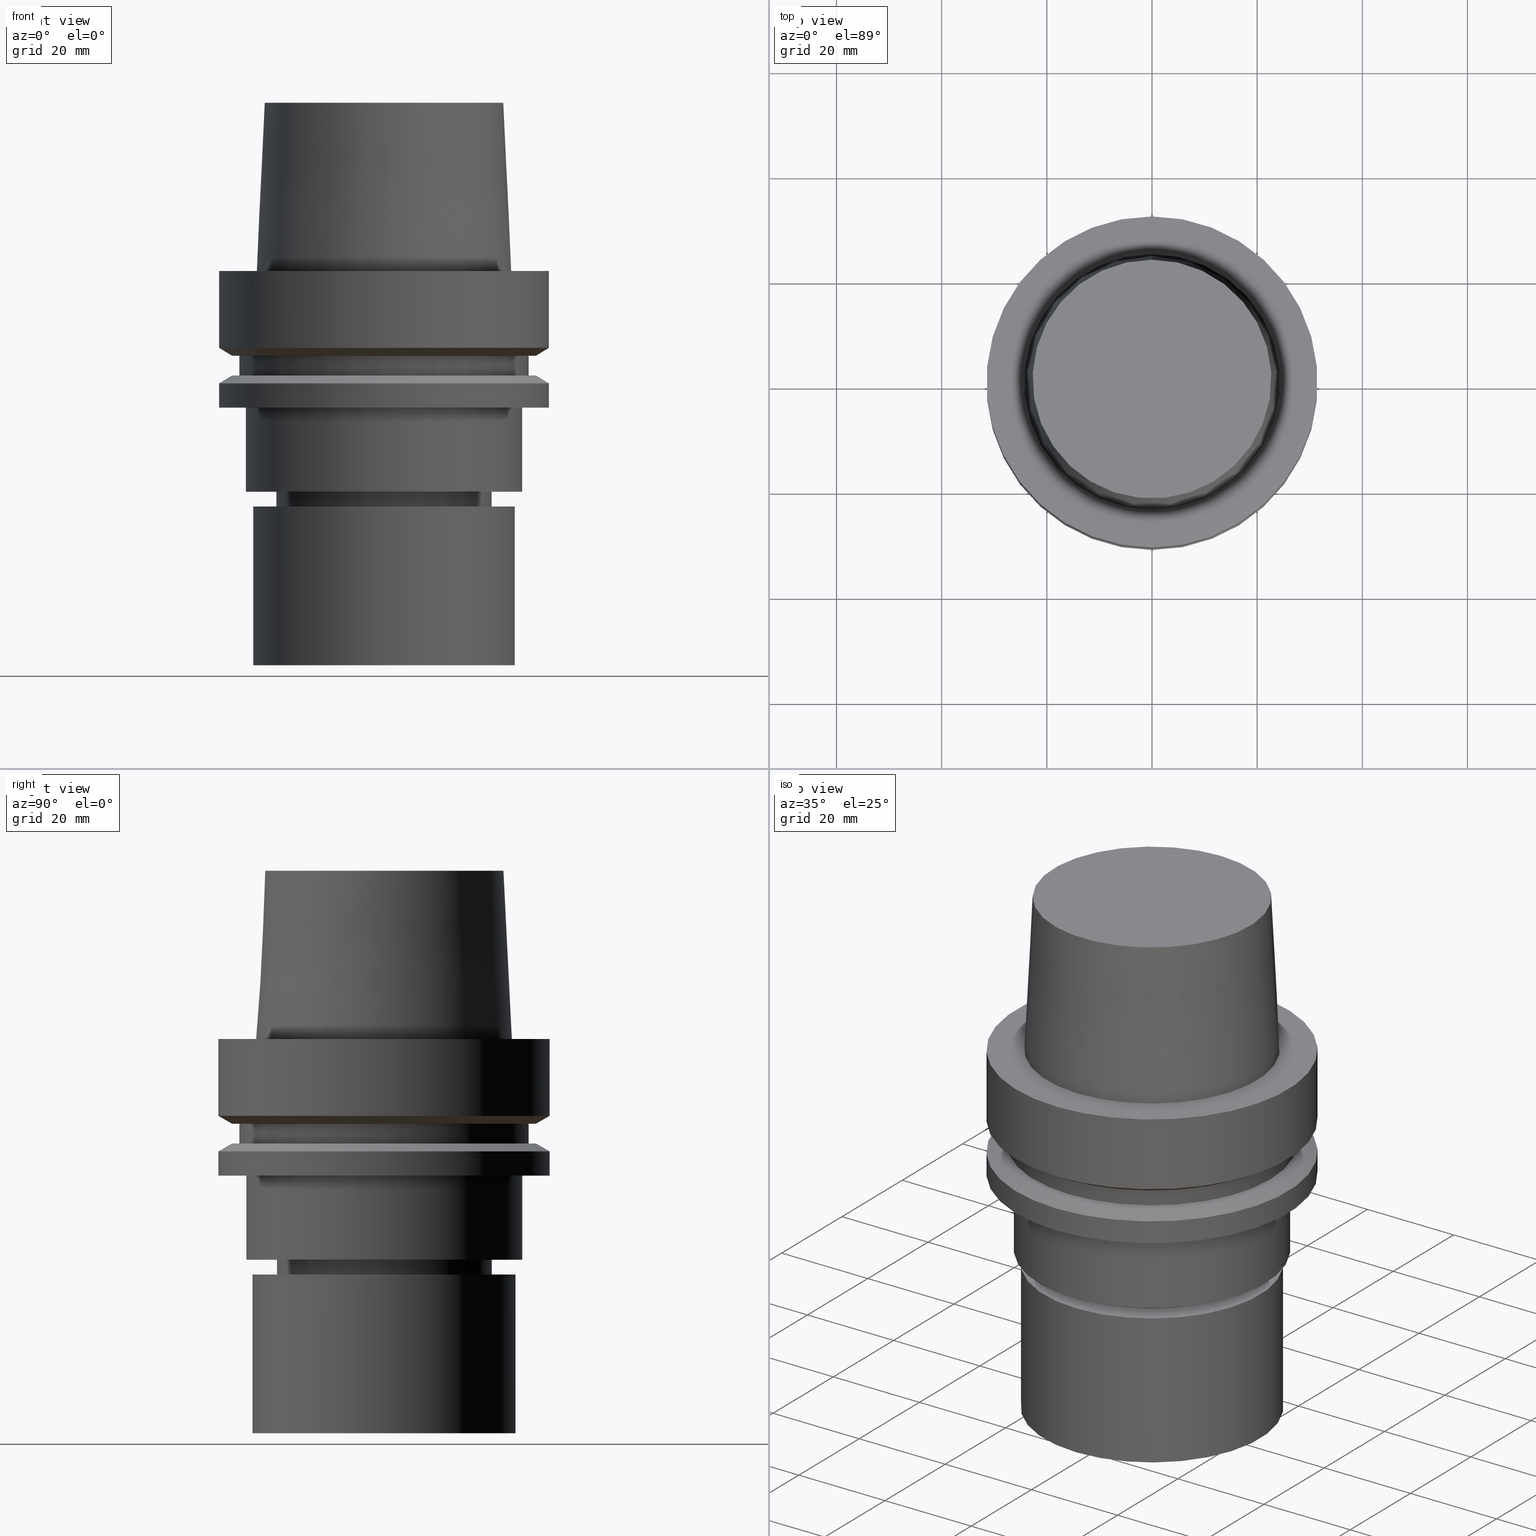
[diagram: canonical four-view strip — front | top / right | iso, engineering-drawing reading convention]
A machine part, canonical four-view strip (front | top / right | iso — engineering-drawing reading convention). The complete STEP part file that produces these views, byte-faithful:
ISO-10303-21;
HEADER;
FILE_DESCRIPTION((''),'1');
FILE_NAME('U:/Translate/02_3D_Field-HP\X2\FF71FF6FFF8CFF9F5916\X0\2013/02_Step_Field-HP\X2\FF71FF6FFF8CFF9F5916\X0\2013/HSK-A63-MEGAER32-75NL.stp','2016-06-22T00:31:55',(''),(''),'Spatial Interop R21 SP3','Kubotek KeyCreator 2011 V10.0.2 (22737)',' ');
FILE_SCHEMA(('automotive_design'));
ENDSEC;
DATA;
#1=MECHANICAL_DESIGN_GEOMETRIC_PRESENTATION_REPRESENTATION(' ',(#14,#15,#16,#17,#18,#19,#20,#21,#22,#23,#24,#25,#26,#27,#28,#29,#30,#31,#32,#33,#34,#35,#36,#37,#38,#39,#40,#41,#42,#43,#44,#45,#46,#47,#48,#49,#50,#51,#52,#53,#54,#55),#10);
#2=PRODUCT_DEFINITION_CONTEXT('',#56,'design');
#3=APPLICATION_PROTOCOL_DEFINITION('INTERNATIONAL STANDARD','automotive_design',1994,#56);
#4=PRODUCT_CATEGORY_RELATIONSHIP('NONE','NONE',#57,#58);
#5=SHAPE_DEFINITION_REPRESENTATION(#59,#60);
#6=PRODUCT_DEFINITION_CONTEXT('',#61,'design');
#7=APPLICATION_PROTOCOL_DEFINITION('INTERNATIONAL STANDARD','automotive_design',1994,#61);
#8=PRODUCT_CATEGORY_RELATIONSHIP('NONE','NONE',#62,#63);
#9=SHAPE_DEFINITION_REPRESENTATION(#64,#65);
#10= (GEOMETRIC_REPRESENTATION_CONTEXT(3)GLOBAL_UNCERTAINTY_ASSIGNED_CONTEXT((#68))GLOBAL_UNIT_ASSIGNED_CONTEXT((#70,#71,#72))REPRESENTATION_CONTEXT('NONE','WORKSPACE'));
#14=STYLED_ITEM('',(#74,#75),#76);
#15=STYLED_ITEM('',(#77,#78),#79);
#16=STYLED_ITEM('',(#80),#81);
#17=STYLED_ITEM('',(#82,#83),#84);
#18=STYLED_ITEM('',(#85,#86),#87);
#19=STYLED_ITEM('',(#88),#89);
#20=STYLED_ITEM('',(#90,#91),#92);
#21=STYLED_ITEM('',(#93,#94),#95);
#22=STYLED_ITEM('',(#96,#97),#98);
#23=STYLED_ITEM('',(#99,#100),#101);
#24=STYLED_ITEM('',(#102,#103),#104);
#25=STYLED_ITEM('',(#105),#106);
#26=STYLED_ITEM('',(#107),#108);
#27=STYLED_ITEM('',(#109,#110),#111);
#28=STYLED_ITEM('',(#112,#113),#114);
#29=STYLED_ITEM('',(#115,#116),#117);
#30=STYLED_ITEM('',(#118),#119);
#31=STYLED_ITEM('',(#120),#121);
#32=STYLED_ITEM('',(#122),#123);
#33=STYLED_ITEM('',(#124,#125),#126);
#34=STYLED_ITEM('',(#127),#128);
#35=STYLED_ITEM('',(#129),#130);
#36=STYLED_ITEM('',(#131),#132);
#37=STYLED_ITEM('',(#133,#134),#135);
#38=STYLED_ITEM('',(#136),#137);
#39=STYLED_ITEM('',(#138,#139),#140);
#40=STYLED_ITEM('',(#141),#142);
#41=STYLED_ITEM('',(#143),#144);
#42=STYLED_ITEM('',(#145),#146);
#43=STYLED_ITEM('',(#147),#148);
#44=STYLED_ITEM('',(#149),#150);
#45=STYLED_ITEM('',(#151,#152),#153);
#46=STYLED_ITEM('',(#154),#155);
#47=STYLED_ITEM('',(#156,#157),#158);
#48=STYLED_ITEM('',(#159,#160),#161);
#49=STYLED_ITEM('',(#162,#163),#164);
#50=STYLED_ITEM('',(#165),#166);
#51=STYLED_ITEM('',(#167,#168),#169);
#52=STYLED_ITEM('',(#170,#171),#172);
#53=STYLED_ITEM('',(#173,#174),#175);
#54=STYLED_ITEM('',(#176,#177),#178);
#55=STYLED_ITEM('',(#179),#180);
#56=APPLICATION_CONTEXT(' ');
#57=PRODUCT_CATEGORY('part','NONE');
#58=PRODUCT_RELATED_PRODUCT_CATEGORY('detail',' ',(#181));
#59=PRODUCT_DEFINITION_SHAPE('NONE','NONE',#182);
#60=ADVANCED_BREP_SHAPE_REPRESENTATION('Unnamed[1]',(#84,#183),#10);
#61=APPLICATION_CONTEXT(' ');
#62=PRODUCT_CATEGORY('part','NONE');
#63=PRODUCT_RELATED_PRODUCT_CATEGORY('detail',' ',(#184));
#64=PRODUCT_DEFINITION_SHAPE('NONE','NONE',#185);
#65=ADVANCED_BREP_SHAPE_REPRESENTATION('Unnamed[1]',(#140,#186),#10);
#68=UNCERTAINTY_MEASURE_WITH_UNIT(LENGTH_MEASURE(1.0E-006),#70,'','');
#70= (CONVERSION_BASED_UNIT('MILLIMETRE',#189)LENGTH_UNIT()NAMED_UNIT(#192));
#71= (NAMED_UNIT(#194)PLANE_ANGLE_UNIT()SI_UNIT($,.RADIAN.));
#72= (NAMED_UNIT(#194)SOLID_ANGLE_UNIT()SI_UNIT($,.STERADIAN.));
#74=PRESENTATION_STYLE_ASSIGNMENT((#200));
#75=PRESENTATION_STYLE_ASSIGNMENT((#201));
#76=ADVANCED_FACE('Unnamed[1]',(#202,#203),#204,.T.);
#77=PRESENTATION_STYLE_ASSIGNMENT((#205));
#78=PRESENTATION_STYLE_ASSIGNMENT((#206));
#79=ADVANCED_FACE('Unnamed[1]',(#207,#208),#209,.T.);
#80=PRESENTATION_STYLE_ASSIGNMENT((#210));
#81=EDGE_CURVE('Unnamed[1]',#211,#211,#212,.T.);
#82=PRESENTATION_STYLE_ASSIGNMENT((#213));
#83=PRESENTATION_STYLE_ASSIGNMENT((#214));
#84=MANIFOLD_SOLID_BREP('Unnamed[1]',#215);
#85=PRESENTATION_STYLE_ASSIGNMENT((#216));
#86=PRESENTATION_STYLE_ASSIGNMENT((#217));
#87=ADVANCED_FACE('Unnamed[1]',(#218,#219),#220,.T.);
#88=PRESENTATION_STYLE_ASSIGNMENT((#221));
#89=EDGE_CURVE('Unnamed[1]',#222,#222,#223,.T.);
#90=PRESENTATION_STYLE_ASSIGNMENT((#224));
#91=PRESENTATION_STYLE_ASSIGNMENT((#225));
#92=ADVANCED_FACE('Unnamed[1]',(#226,#227),#228,.T.);
#93=PRESENTATION_STYLE_ASSIGNMENT((#229));
#94=PRESENTATION_STYLE_ASSIGNMENT((#230));
#95=ADVANCED_FACE('Unnamed[1]',(#231,#232),#233,.T.);
#96=PRESENTATION_STYLE_ASSIGNMENT((#234));
#97=PRESENTATION_STYLE_ASSIGNMENT((#235));
#98=ADVANCED_FACE('Unnamed[1]',(#236,#237),#238,.T.);
#99=PRESENTATION_STYLE_ASSIGNMENT((#239));
#100=PRESENTATION_STYLE_ASSIGNMENT((#240));
#101=ADVANCED_FACE('Unnamed[1]',(#241),#242,.T.);
#102=PRESENTATION_STYLE_ASSIGNMENT((#243));
#103=PRESENTATION_STYLE_ASSIGNMENT((#244));
#104=ADVANCED_FACE('Unnamed[1]',(#245,#246),#247,.T.);
#105=PRESENTATION_STYLE_ASSIGNMENT((#248));
#106=EDGE_CURVE('Unnamed[1]',#249,#249,#250,.T.);
#107=PRESENTATION_STYLE_ASSIGNMENT((#251));
#108=EDGE_CURVE('Unnamed[1]',#252,#252,#253,.T.);
#109=PRESENTATION_STYLE_ASSIGNMENT((#254));
#110=PRESENTATION_STYLE_ASSIGNMENT((#255));
#111=ADVANCED_FACE('Unnamed[1]',(#256,#257),#258,.T.);
#112=PRESENTATION_STYLE_ASSIGNMENT((#259));
#113=PRESENTATION_STYLE_ASSIGNMENT((#260));
#114=ADVANCED_FACE('Unnamed[1]',(#261),#262,.T.);
#115=PRESENTATION_STYLE_ASSIGNMENT((#263));
#116=PRESENTATION_STYLE_ASSIGNMENT((#264));
#117=ADVANCED_FACE('Unnamed[1]',(#265,#266),#267,.T.);
#118=PRESENTATION_STYLE_ASSIGNMENT((#268));
#119=EDGE_CURVE('Unnamed[1]',#269,#269,#270,.T.);
#120=PRESENTATION_STYLE_ASSIGNMENT((#271));
#121=EDGE_CURVE('Unnamed[1]',#272,#272,#273,.T.);
#122=PRESENTATION_STYLE_ASSIGNMENT((#274));
#123=EDGE_CURVE('Unnamed[1]',#275,#275,#276,.T.);
#124=PRESENTATION_STYLE_ASSIGNMENT((#277));
#125=PRESENTATION_STYLE_ASSIGNMENT((#278));
#126=ADVANCED_FACE('Unnamed[1]',(#279,#280),#281,.T.);
#127=PRESENTATION_STYLE_ASSIGNMENT((#282));
#128=EDGE_CURVE('Unnamed[1]',#283,#283,#284,.T.);
#129=PRESENTATION_STYLE_ASSIGNMENT((#285));
#130=EDGE_CURVE('Unnamed[1]',#286,#286,#287,.T.);
#131=PRESENTATION_STYLE_ASSIGNMENT((#288));
#132=EDGE_CURVE('Unnamed[1]',#289,#289,#290,.T.);
#133=PRESENTATION_STYLE_ASSIGNMENT((#291));
#134=PRESENTATION_STYLE_ASSIGNMENT((#292));
#135=ADVANCED_FACE('Unnamed[1]',(#293,#294),#295,.T.);
#136=PRESENTATION_STYLE_ASSIGNMENT((#296));
#137=EDGE_CURVE('Unnamed[1]',#297,#297,#298,.T.);
#138=PRESENTATION_STYLE_ASSIGNMENT((#299));
#139=PRESENTATION_STYLE_ASSIGNMENT((#300));
#140=MANIFOLD_SOLID_BREP('Unnamed[1]',#301);
#141=PRESENTATION_STYLE_ASSIGNMENT((#302));
#142=EDGE_CURVE('Unnamed[1]',#303,#303,#304,.T.);
#143=PRESENTATION_STYLE_ASSIGNMENT((#305));
#144=EDGE_CURVE('Unnamed[1]',#306,#306,#307,.T.);
#145=PRESENTATION_STYLE_ASSIGNMENT((#308));
#146=EDGE_CURVE('Unnamed[1]',#309,#309,#310,.T.);
#147=PRESENTATION_STYLE_ASSIGNMENT((#311));
#148=EDGE_CURVE('Unnamed[1]',#312,#312,#313,.T.);
#149=PRESENTATION_STYLE_ASSIGNMENT((#314));
#150=EDGE_CURVE('Unnamed[1]',#315,#315,#316,.T.);
#151=PRESENTATION_STYLE_ASSIGNMENT((#317));
#152=PRESENTATION_STYLE_ASSIGNMENT((#318));
#153=ADVANCED_FACE('Unnamed[1]',(#319,#320),#321,.T.);
#154=PRESENTATION_STYLE_ASSIGNMENT((#322));
#155=EDGE_CURVE('Unnamed[1]',#323,#323,#324,.T.);
#156=PRESENTATION_STYLE_ASSIGNMENT((#325));
#157=PRESENTATION_STYLE_ASSIGNMENT((#326));
#158=ADVANCED_FACE('Unnamed[1]',(#327),#328,.T.);
#159=PRESENTATION_STYLE_ASSIGNMENT((#329));
#160=PRESENTATION_STYLE_ASSIGNMENT((#330));
#161=ADVANCED_FACE('Unnamed[1]',(#331,#332),#333,.T.);
#162=PRESENTATION_STYLE_ASSIGNMENT((#334));
#163=PRESENTATION_STYLE_ASSIGNMENT((#335));
#164=ADVANCED_FACE('Unnamed[1]',(#336,#337),#338,.T.);
#165=PRESENTATION_STYLE_ASSIGNMENT((#339));
#166=EDGE_CURVE('Unnamed[1]',#340,#340,#341,.T.);
#167=PRESENTATION_STYLE_ASSIGNMENT((#342));
#168=PRESENTATION_STYLE_ASSIGNMENT((#343));
#169=ADVANCED_FACE('Unnamed[1]',(#344),#345,.T.);
#170=PRESENTATION_STYLE_ASSIGNMENT((#346));
#171=PRESENTATION_STYLE_ASSIGNMENT((#347));
#172=ADVANCED_FACE('Unnamed[1]',(#348,#349),#350,.T.);
#173=PRESENTATION_STYLE_ASSIGNMENT((#351));
#174=PRESENTATION_STYLE_ASSIGNMENT((#352));
#175=ADVANCED_FACE('Unnamed[1]',(#353,#354),#355,.T.);
#176=PRESENTATION_STYLE_ASSIGNMENT((#356));
#177=PRESENTATION_STYLE_ASSIGNMENT((#357));
#178=ADVANCED_FACE('Unnamed[1]',(#358,#359),#360,.T.);
#179=PRESENTATION_STYLE_ASSIGNMENT((#361));
#180=EDGE_CURVE('Unnamed[1]',#362,#362,#363,.T.);
#181=PRODUCT('Unnamed[1]','Unnamed[1]','PART-Unnamed[1]-DESC',(#364));
#182=PRODUCT_DEFINITION('NONE','NONE',#365,#2);
#183=AXIS2_PLACEMENT_3D('',#366,#367,#368);
#184=PRODUCT('Unnamed[1]','Unnamed[1]','PART-Unnamed[1]-DESC',(#369));
#185=PRODUCT_DEFINITION('NONE','NONE',#370,#6);
#186=AXIS2_PLACEMENT_3D('',#371,#372,#373);
#189=LENGTH_MEASURE_WITH_UNIT(LENGTH_MEASURE(1.0),#374);
#192=DIMENSIONAL_EXPONENTS(1.0,0.0,0.0,0.0,0.0,0.0,0.0);
#194=DIMENSIONAL_EXPONENTS(0.0,0.0,0.0,0.0,0.0,0.0,0.0);
#200=SURFACE_STYLE_USAGE(.BOTH.,#375);
#201=CURVE_STYLE('',#376,POSITIVE_LENGTH_MEASURE(1000.0),#377);
#202=FACE_BOUND('',#378,.T.);
#203=FACE_BOUND('',#379,.T.);
#204=CYLINDRICAL_SURFACE('',#380,20.4999999999961);
#205=SURFACE_STYLE_USAGE(.BOTH.,#381);
#206=CURVE_STYLE('',#382,POSITIVE_LENGTH_MEASURE(1000.0),#383);
#207=FACE_BOUND('',#384,.T.);
#208=FACE_BOUND('',#385,.T.);
#209=CYLINDRICAL_SURFACE('',#386,31.5);
#210=CURVE_STYLE('',#387,POSITIVE_LENGTH_MEASURE(1000.0),#388);
#211=VERTEX_POINT('',#389);
#212=CIRCLE('',#390,20.0000000000001);
#213=SURFACE_STYLE_USAGE(.BOTH.,#391);
#214=CURVE_STYLE('',#392,POSITIVE_LENGTH_MEASURE(1000.0),#393);
#215=CLOSED_SHELL('',(#158,#126,#135,#87,#76,#153,#92,#175,#95,#164,#104,#117,#161,#111,#79,#98,#172,#101));
#216=SURFACE_STYLE_USAGE(.BOTH.,#394);
#217=CURVE_STYLE('',#395,POSITIVE_LENGTH_MEASURE(1000.0),#396);
#218=FACE_BOUND('',#397,.T.);
#219=FACE_BOUND('',#398,.T.);
#220=CONICAL_SURFACE('',#399,20.2500000000006,0.766162649696511);
#221=CURVE_STYLE('',#400,POSITIVE_LENGTH_MEASURE(1000.0),#401);
#222=VERTEX_POINT('',#402);
#223=CIRCLE('',#403,27.5);
#224=SURFACE_STYLE_USAGE(.BOTH.,#404);
#225=CURVE_STYLE('',#405,POSITIVE_LENGTH_MEASURE(1000.0),#406);
#226=FACE_BOUND('',#407,.T.);
#227=FACE_BOUND('',#408,.T.);
#228=CYLINDRICAL_SURFACE('',#409,26.3);
#229=SURFACE_STYLE_USAGE(.BOTH.,#410);
#230=CURVE_STYLE('',#411,POSITIVE_LENGTH_MEASURE(1000.0),#412);
#231=FACE_BOUND('',#413,.T.);
#232=FACE_BOUND('',#414,.T.);
#233=CYLINDRICAL_SURFACE('',#415,31.4999999999999);
#234=SURFACE_STYLE_USAGE(.BOTH.,#416);
#235=CURVE_STYLE('',#417,POSITIVE_LENGTH_MEASURE(1000.0),#418);
#236=FACE_BOUND('',#419,.T.);
#237=FACE_OUTER_BOUND('',#420,.T.);
#238=PLANE('',#421);
#239=SURFACE_STYLE_USAGE(.BOTH.,#422);
#240=CURVE_STYLE('',#423,POSITIVE_LENGTH_MEASURE(1000.0),#424);
#241=FACE_OUTER_BOUND('',#425,.T.);
#242=PLANE('',#426);
#243=SURFACE_STYLE_USAGE(.BOTH.,#427);
#244=CURVE_STYLE('',#428,POSITIVE_LENGTH_MEASURE(1000.0),#429);
#245=FACE_BOUND('',#430,.T.);
#246=FACE_OUTER_BOUND('',#431,.T.);
#247=PLANE('',#432);
#248=CURVE_STYLE('',#433,POSITIVE_LENGTH_MEASURE(1000.0),#434);
#249=VERTEX_POINT('',#435);
#250=CIRCLE('',#436,31.5);
#251=CURVE_STYLE('',#437,POSITIVE_LENGTH_MEASURE(1000.0),#438);
#252=VERTEX_POINT('',#439);
#253=CIRCLE('',#440,31.5000000000001);
#254=SURFACE_STYLE_USAGE(.BOTH.,#441);
#255=CURVE_STYLE('',#442,POSITIVE_LENGTH_MEASURE(1000.0),#443);
#256=FACE_BOUND('',#444,.T.);
#257=FACE_BOUND('',#445,.T.);
#258=CONICAL_SURFACE('',#446,30.1987976320959,1.04719755119657);
#259=SURFACE_STYLE_USAGE(.BOTH.,#447);
#260=CURVE_STYLE('',#448,POSITIVE_LENGTH_MEASURE(1000.0),#449);
#261=FACE_OUTER_BOUND('',#450,.T.);
#262=PLANE('',#451);
#263=SURFACE_STYLE_USAGE(.BOTH.,#452);
#264=CURVE_STYLE('',#453,POSITIVE_LENGTH_MEASURE(1000.0),#454);
#265=FACE_BOUND('',#455,.T.);
#266=FACE_BOUND('',#456,.T.);
#267=CYLINDRICAL_SURFACE('',#457,27.4999999999994);
#268=CURVE_STYLE('',#458,POSITIVE_LENGTH_MEASURE(1000.0),#459);
#269=VERTEX_POINT('',#460);
#270=CIRCLE('',#461,20.0);
#271=CURVE_STYLE('',#462,POSITIVE_LENGTH_MEASURE(1000.0),#463);
#272=VERTEX_POINT('',#464);
#273=CIRCLE('',#465,27.4999999999989);
#274=CURVE_STYLE('',#466,POSITIVE_LENGTH_MEASURE(1000.0),#467);
#275=VERTEX_POINT('',#468);
#276=CIRCLE('',#469,25.0);
#277=SURFACE_STYLE_USAGE(.BOTH.,#470);
#278=CURVE_STYLE('',#471,POSITIVE_LENGTH_MEASURE(1000.0),#472);
#279=FACE_BOUND('',#473,.T.);
#280=FACE_BOUND('',#474,.T.);
#281=CONICAL_SURFACE('',#475,19.4499999999999,0.523598775598219);
#282=CURVE_STYLE('',#476,POSITIVE_LENGTH_MEASURE(1000.0),#477);
#283=VERTEX_POINT('',#478);
#284=CIRCLE('',#479,25.0);
#285=CURVE_STYLE('',#480,POSITIVE_LENGTH_MEASURE(1000.0),#481);
#286=VERTEX_POINT('',#482);
#287=CIRCLE('',#483,18.8999999999997);
#288=CURVE_STYLE('',#484,POSITIVE_LENGTH_MEASURE(1000.0),#485);
#289=VERTEX_POINT('',#486);
#290=CIRCLE('',#487,24.315);
#291=SURFACE_STYLE_USAGE(.BOTH.,#488);
#292=CURVE_STYLE('',#489,POSITIVE_LENGTH_MEASURE(1000.0),#490);
#293=FACE_BOUND('',#491,.T.);
#294=FACE_BOUND('',#492,.T.);
#295=CYLINDRICAL_SURFACE('',#493,20.0);
#296=CURVE_STYLE('',#494,POSITIVE_LENGTH_MEASURE(1000.0),#495);
#297=VERTEX_POINT('',#496);
#298=CIRCLE('',#497,26.3);
#299=SURFACE_STYLE_USAGE(.BOTH.,#498);
#300=CURVE_STYLE('',#499,POSITIVE_LENGTH_MEASURE(1000.0),#500);
#301=CLOSED_SHELL('',(#114,#169,#178));
#302=CURVE_STYLE('',#501,POSITIVE_LENGTH_MEASURE(1000.0),#502);
#303=VERTEX_POINT('',#503);
#304=CIRCLE('',#504,28.8975952641919);
#305=CURVE_STYLE('',#505,POSITIVE_LENGTH_MEASURE(1000.0),#506);
#306=VERTEX_POINT('',#507);
#307=CIRCLE('',#508,26.3);
#308=CURVE_STYLE('',#509,POSITIVE_LENGTH_MEASURE(1000.0),#510);
#309=VERTEX_POINT('',#511);
#310=CIRCLE('',#512,20.5000000000012);
#311=CURVE_STYLE('',#513,POSITIVE_LENGTH_MEASURE(1000.0),#514);
#312=VERTEX_POINT('',#515);
#313=CIRCLE('',#516,20.4999999999911);
#314=CURVE_STYLE('',#517,POSITIVE_LENGTH_MEASURE(1000.0),#518);
#315=VERTEX_POINT('',#519);
#316=CIRCLE('',#520,28.8975952641919);
#317=SURFACE_STYLE_USAGE(.BOTH.,#521);
#318=CURVE_STYLE('',#522,POSITIVE_LENGTH_MEASURE(1000.0),#523);
#319=FACE_OUTER_BOUND('',#524,.T.);
#320=FACE_BOUND('',#525,.T.);
#321=PLANE('',#526);
#322=CURVE_STYLE('',#527,POSITIVE_LENGTH_MEASURE(1000.0),#528);
#323=VERTEX_POINT('',#529);
#324=CIRCLE('',#530,31.5);
#325=SURFACE_STYLE_USAGE(.BOTH.,#531);
#326=CURVE_STYLE('',#532,POSITIVE_LENGTH_MEASURE(1000.0),#533);
#327=FACE_OUTER_BOUND('',#534,.T.);
#328=PLANE('',#535);
#329=SURFACE_STYLE_USAGE(.BOTH.,#536);
#330=CURVE_STYLE('',#537,POSITIVE_LENGTH_MEASURE(1000.0),#538);
#331=FACE_OUTER_BOUND('',#539,.T.);
#332=FACE_BOUND('',#540,.T.);
#333=PLANE('',#541);
#334=SURFACE_STYLE_USAGE(.BOTH.,#542);
#335=CURVE_STYLE('',#543,POSITIVE_LENGTH_MEASURE(1000.0),#544);
#336=FACE_BOUND('',#545,.T.);
#337=FACE_BOUND('',#546,.T.);
#338=CONICAL_SURFACE('',#547,30.1987976320959,1.04719755119657);
#339=CURVE_STYLE('',#548,POSITIVE_LENGTH_MEASURE(1000.0),#549);
#340=VERTEX_POINT('',#550);
#341=CIRCLE('',#551,22.715);
#342=SURFACE_STYLE_USAGE(.BOTH.,#552);
#343=CURVE_STYLE('',#553,POSITIVE_LENGTH_MEASURE(1000.0),#554);
#344=FACE_OUTER_BOUND('',#555,.T.);
#345=PLANE('',#556);
#346=SURFACE_STYLE_USAGE(.BOTH.,#557);
#347=CURVE_STYLE('',#558,POSITIVE_LENGTH_MEASURE(1000.0),#559);
#348=FACE_BOUND('',#560,.T.);
#349=FACE_BOUND('',#561,.T.);
#350=CONICAL_SURFACE('',#562,23.515,0.0499583957219433);
#351=SURFACE_STYLE_USAGE(.BOTH.,#563);
#352=CURVE_STYLE('',#564,POSITIVE_LENGTH_MEASURE(1000.0),#565);
#353=FACE_OUTER_BOUND('',#566,.T.);
#354=FACE_BOUND('',#567,.T.);
#355=PLANE('',#568);
#356=SURFACE_STYLE_USAGE(.BOTH.,#569);
#357=CURVE_STYLE('',#570,POSITIVE_LENGTH_MEASURE(1000.0),#571);
#358=FACE_BOUND('',#572,.T.);
#359=FACE_BOUND('',#573,.T.);
#360=CYLINDRICAL_SURFACE('',#574,25.0);
#361=CURVE_STYLE('',#575,POSITIVE_LENGTH_MEASURE(1000.0),#576);
#362=VERTEX_POINT('',#577);
#363=CIRCLE('',#578,31.4999999999998);
#364=PRODUCT_CONTEXT('',#56,'mechanical');
#365=PRODUCT_DEFINITION_FORMATION_WITH_SPECIFIED_SOURCE(' ','NONE',#181,.NOT_KNOWN.);
#366=CARTESIAN_POINT('',(0.0,0.0,0.0));
#367=DIRECTION('',(0.0,0.0,1.0));
#368=DIRECTION('',(1.0,0.0,0.0));
#369=PRODUCT_CONTEXT('',#61,'mechanical');
#370=PRODUCT_DEFINITION_FORMATION_WITH_SPECIFIED_SOURCE(' ','NONE',#184,.NOT_KNOWN.);
#371=CARTESIAN_POINT('',(0.0,0.0,0.0));
#372=DIRECTION('',(0.0,0.0,1.0));
#373=DIRECTION('',(1.0,0.0,0.0));
#374= (NAMED_UNIT(#192)LENGTH_UNIT()SI_UNIT(.MILLI.,.METRE.));
#375=SURFACE_SIDE_STYLE('',(#580));
#376=DRAUGHTING_PRE_DEFINED_CURVE_FONT('continuous');
#377=COLOUR_RGB('',0.0,1.0,0.0);
#378=EDGE_LOOP('',(#581));
#379=EDGE_LOOP('',(#582));
#380=AXIS2_PLACEMENT_3D('',#583,#584,#585);
#381=SURFACE_SIDE_STYLE('',(#586));
#382=DRAUGHTING_PRE_DEFINED_CURVE_FONT('continuous');
#383=COLOUR_RGB('',0.0,1.0,0.0);
#384=EDGE_LOOP('',(#587));
#385=EDGE_LOOP('',(#588));
#386=AXIS2_PLACEMENT_3D('',#589,#590,#591);
#387=DRAUGHTING_PRE_DEFINED_CURVE_FONT('continuous');
#388=COLOUR_RGB('',0.0,1.0,0.0);
#389=CARTESIAN_POINT('',(3.80220648101174E-015,20.0000000000001,-62.0947441116734));
#390=AXIS2_PLACEMENT_3D('',#592,#593,#594);
#391=SURFACE_SIDE_STYLE('',(#595));
#392=DRAUGHTING_PRE_DEFINED_CURVE_FONT('continuous');
#393=COLOUR_RGB('',0.0,1.0,0.0);
#394=SURFACE_SIDE_STYLE('',(#596));
#395=DRAUGHTING_PRE_DEFINED_CURVE_FONT('continuous');
#396=COLOUR_RGB('',0.0,1.0,0.0);
#397=EDGE_LOOP('',(#597));
#398=EDGE_LOOP('',(#598));
#399=AXIS2_PLACEMENT_3D('',#599,#600,#601);
#400=DRAUGHTING_PRE_DEFINED_CURVE_FONT('continuous');
#401=COLOUR_RGB('',0.0,1.0,0.0);
#402=CARTESIAN_POINT('',(9.87371481812537E-016,27.5,-16.1249999999997));
#403=AXIS2_PLACEMENT_3D('',#602,#603,#604);
#404=SURFACE_SIDE_STYLE('',(#605));
#405=DRAUGHTING_PRE_DEFINED_CURVE_FONT('continuous');
#406=COLOUR_RGB('',0.0,1.0,0.0);
#407=EDGE_LOOP('',(#606));
#408=EDGE_LOOP('',(#607));
#409=AXIS2_PLACEMENT_3D('',#608,#609,#610);
#410=SURFACE_SIDE_STYLE('',(#611));
#411=DRAUGHTING_PRE_DEFINED_CURVE_FONT('continuous');
#412=COLOUR_RGB('',0.0,1.0,0.0);
#413=EDGE_LOOP('',(#612));
#414=EDGE_LOOP('',(#613));
#415=AXIS2_PLACEMENT_3D('',#614,#615,#616);
#416=SURFACE_SIDE_STYLE('',(#617));
#417=DRAUGHTING_PRE_DEFINED_CURVE_FONT('continuous');
#418=COLOUR_RGB('',0.0,1.0,0.0);
#419=EDGE_LOOP('',(#618));
#420=EDGE_LOOP('',(#619));
#421=AXIS2_PLACEMENT_3D('',#620,#621,#622);
#422=SURFACE_SIDE_STYLE('',(#623));
#423=DRAUGHTING_PRE_DEFINED_CURVE_FONT('continuous');
#424=COLOUR_RGB('',0.0,1.0,0.0);
#425=EDGE_LOOP('',(#624));
#426=AXIS2_PLACEMENT_3D('',#625,#626,#627);
#427=SURFACE_SIDE_STYLE('',(#628));
#428=DRAUGHTING_PRE_DEFINED_CURVE_FONT('continuous');
#429=COLOUR_RGB('',0.0,1.0,0.0);
#430=EDGE_LOOP('',(#629));
#431=EDGE_LOOP('',(#630));
#432=AXIS2_PLACEMENT_3D('',#631,#632,#633);
#433=DRAUGHTING_PRE_DEFINED_CURVE_FONT('continuous');
#434=COLOUR_RGB('',0.0,1.0,0.0);
#435=CARTESIAN_POINT('',(8.95369947681261E-016,31.5,-14.6225009252407));
#436=AXIS2_PLACEMENT_3D('',#634,#635,#636);
#437=DRAUGHTING_PRE_DEFINED_CURVE_FONT('continuous');
#438=COLOUR_RGB('',0.0,1.0,0.0);
#439=CARTESIAN_POINT('',(-3.88267476788467E-031,31.5000000000001,3.85763741731417E-015));
#440=AXIS2_PLACEMENT_3D('',#637,#638,#639);
#441=SURFACE_SIDE_STYLE('',(#640));
#442=DRAUGHTING_PRE_DEFINED_CURVE_FONT('continuous');
#443=COLOUR_RGB('',0.0,1.0,0.0);
#444=EDGE_LOOP('',(#641));
#445=EDGE_LOOP('',(#642));
#446=AXIS2_PLACEMENT_3D('',#643,#644,#645);
#447=SURFACE_SIDE_STYLE('',(#646));
#448=DRAUGHTING_PRE_DEFINED_CURVE_FONT('continuous');
#449=COLOUR_RGB('',0.0,1.0,0.0);
#450=EDGE_LOOP('',(#647));
#451=AXIS2_PLACEMENT_3D('',#648,#649,#650);
#452=SURFACE_SIDE_STYLE('',(#651));
#453=DRAUGHTING_PRE_DEFINED_CURVE_FONT('continuous');
#454=COLOUR_RGB('',0.0,1.0,0.0);
#455=EDGE_LOOP('',(#652));
#456=EDGE_LOOP('',(#653));
#457=AXIS2_PLACEMENT_3D('',#654,#655,#656);
#458=DRAUGHTING_PRE_DEFINED_CURVE_FONT('continuous');
#459=COLOUR_RGB('',0.0,1.0,0.0);
#460=CARTESIAN_POINT('',(2.98391913945804E-015,20.0,-48.73109767707));
#461=AXIS2_PLACEMENT_3D('',#657,#658,#659);
#462=DRAUGHTING_PRE_DEFINED_CURVE_FONT('continuous');
#463=COLOUR_RGB('',0.0,1.0,0.0);
#464=CARTESIAN_POINT('',(1.21699275665276E-015,27.4999999999989,-19.8750000000013));
#465=AXIS2_PLACEMENT_3D('',#660,#661,#662);
#466=DRAUGHTING_PRE_DEFINED_CURVE_FONT('continuous');
#467=COLOUR_RGB('',0.0,1.0,0.0);
#468=CARTESIAN_POINT('',(4.59242549680257E-015,25.0,-75.0));
#469=AXIS2_PLACEMENT_3D('',#663,#664,#665);
#470=SURFACE_SIDE_STYLE('',(#666));
#471=DRAUGHTING_PRE_DEFINED_CURVE_FONT('continuous');
#472=COLOUR_RGB('',0.0,1.0,0.0);
#473=EDGE_LOOP('',(#667));
#474=EDGE_LOOP('',(#668));
#475=AXIS2_PLACEMENT_3D('',#669,#670,#671);
#476=DRAUGHTING_PRE_DEFINED_CURVE_FONT('continuous');
#477=COLOUR_RGB('',0.0,1.0,0.0);
#478=CARTESIAN_POINT('',(2.74320883009007E-015,25.0,-44.8));
#479=AXIS2_PLACEMENT_3D('',#672,#673,#674);
#480=DRAUGHTING_PRE_DEFINED_CURVE_FONT('continuous');
#481=COLOUR_RGB('',0.0,1.0,0.0);
#482=CARTESIAN_POINT('',(3.91886975727154E-015,18.8999999999997,-64.0000000000001));
#483=AXIS2_PLACEMENT_3D('',#675,#676,#677);
#484=DRAUGHTING_PRE_DEFINED_CURVE_FONT('continuous');
#485=COLOUR_RGB('',0.0,1.0,0.0);
#486=CARTESIAN_POINT('',(-2.99705514225764E-031,24.315,2.97772869212679E-015));
#487=AXIS2_PLACEMENT_3D('',#678,#679,#680);
#488=SURFACE_SIDE_STYLE('',(#681));
#489=DRAUGHTING_PRE_DEFINED_CURVE_FONT('continuous');
#490=COLOUR_RGB('',0.0,1.0,0.0);
#491=EDGE_LOOP('',(#682));
#492=EDGE_LOOP('',(#683));
#493=AXIS2_PLACEMENT_3D('',#684,#685,#686);
#494=DRAUGHTING_PRE_DEFINED_CURVE_FONT('continuous');
#495=COLOUR_RGB('',0.0,1.0,0.0);
#496=CARTESIAN_POINT('',(1.59204083889154E-015,26.3,-25.9999999999997));
#497=AXIS2_PLACEMENT_3D('',#687,#688,#689);
#498=SURFACE_SIDE_STYLE('',(#690));
#499=DRAUGHTING_PRE_DEFINED_CURVE_FONT('continuous');
#500=COLOUR_RGB('',0.0,1.0,0.0);
#501=DRAUGHTING_PRE_DEFINED_CURVE_FONT('continuous');
#502=COLOUR_RGB('',0.0,1.0,0.0);
#503=CARTESIAN_POINT('',(9.87371481812551E-016,28.8975952641919,-16.125));
#504=AXIS2_PLACEMENT_3D('',#691,#692,#693);
#505=DRAUGHTING_PRE_DEFINED_CURVE_FONT('continuous');
#506=COLOUR_RGB('',0.0,1.0,0.0);
#507=CARTESIAN_POINT('',(2.57176792655273E-015,26.3,-42.0001575694035));
#508=AXIS2_PLACEMENT_3D('',#694,#695,#696);
#509=DRAUGHTING_PRE_DEFINED_CURVE_FONT('continuous');
#510=COLOUR_RGB('',0.0,1.0,0.0);
#511=CARTESIAN_POINT('',(2.95210188229639E-015,20.5000000000012,-48.211482434801));
#512=AXIS2_PLACEMENT_3D('',#697,#698,#699);
#513=DRAUGHTING_PRE_DEFINED_CURVE_FONT('continuous');
#514=COLOUR_RGB('',0.0,1.0,0.0);
#515=CARTESIAN_POINT('',(2.57176792655277E-015,20.4999999999911,-42.0001575694042));
#516=AXIS2_PLACEMENT_3D('',#700,#701,#702);
#517=DRAUGHTING_PRE_DEFINED_CURVE_FONT('continuous');
#518=COLOUR_RGB('',0.0,1.0,0.0);
#519=CARTESIAN_POINT('',(1.21699275665268E-015,28.8975952641919,-19.875));
#520=AXIS2_PLACEMENT_3D('',#703,#704,#705);
#521=SURFACE_SIDE_STYLE('',(#706));
#522=DRAUGHTING_PRE_DEFINED_CURVE_FONT('continuous');
#523=COLOUR_RGB('',0.0,1.0,0.0);
#524=EDGE_LOOP('',(#707));
#525=EDGE_LOOP('',(#708));
#526=AXIS2_PLACEMENT_3D('',#709,#710,#711);
#527=DRAUGHTING_PRE_DEFINED_CURVE_FONT('continuous');
#528=COLOUR_RGB('',0.0,1.0,0.0);
#529=CARTESIAN_POINT('',(1.30899429078397E-015,31.5,-21.3774990747592));
#530=AXIS2_PLACEMENT_3D('',#712,#713,#714);
#531=SURFACE_SIDE_STYLE('',(#715));
#532=DRAUGHTING_PRE_DEFINED_CURVE_FONT('continuous');
#533=COLOUR_RGB('',0.0,1.0,0.0);
#534=EDGE_LOOP('',(#716));
#535=AXIS2_PLACEMENT_3D('',#717,#718,#719);
#536=SURFACE_SIDE_STYLE('',(#720));
#537=DRAUGHTING_PRE_DEFINED_CURVE_FONT('continuous');
#538=COLOUR_RGB('',0.0,1.0,0.0);
#539=EDGE_LOOP('',(#721));
#540=EDGE_LOOP('',(#722));
#541=AXIS2_PLACEMENT_3D('',#723,#724,#725);
#542=SURFACE_SIDE_STYLE('',(#726));
#543=DRAUGHTING_PRE_DEFINED_CURVE_FONT('continuous');
#544=COLOUR_RGB('',0.0,1.0,0.0);
#545=EDGE_LOOP('',(#727));
#546=EDGE_LOOP('',(#728));
#547=AXIS2_PLACEMENT_3D('',#729,#730,#731);
#548=DRAUGHTING_PRE_DEFINED_CURVE_FONT('continuous');
#549=COLOUR_RGB('',0.0,1.0,0.0);
#550=CARTESIAN_POINT('',(-1.95943487863576E-015,22.715,32.0));
#551=AXIS2_PLACEMENT_3D('',#732,#733,#734);
#552=SURFACE_SIDE_STYLE('',(#735));
#553=DRAUGHTING_PRE_DEFINED_CURVE_FONT('continuous');
#554=COLOUR_RGB('',0.0,1.0,0.0);
#555=EDGE_LOOP('',(#736));
#556=AXIS2_PLACEMENT_3D('',#737,#738,#739);
#557=SURFACE_SIDE_STYLE('',(#740));
#558=DRAUGHTING_PRE_DEFINED_CURVE_FONT('continuous');
#559=COLOUR_RGB('',0.0,1.0,0.0);
#560=EDGE_LOOP('',(#741));
#561=EDGE_LOOP('',(#742));
#562=AXIS2_PLACEMENT_3D('',#743,#744,#745);
#563=SURFACE_SIDE_STYLE('',(#746));
#564=DRAUGHTING_PRE_DEFINED_CURVE_FONT('continuous');
#565=COLOUR_RGB('',0.0,1.0,0.0);
#566=EDGE_LOOP('',(#747));
#567=EDGE_LOOP('',(#748));
#568=AXIS2_PLACEMENT_3D('',#749,#750,#751);
#569=SURFACE_SIDE_STYLE('',(#752));
#570=DRAUGHTING_PRE_DEFINED_CURVE_FONT('continuous');
#571=COLOUR_RGB('',0.0,1.0,0.0);
#572=EDGE_LOOP('',(#753));
#573=EDGE_LOOP('',(#754));
#574=AXIS2_PLACEMENT_3D('',#755,#756,#757);
#575=DRAUGHTING_PRE_DEFINED_CURVE_FONT('continuous');
#576=COLOUR_RGB('',0.0,1.0,0.0);
#577=CARTESIAN_POINT('',(1.59204083889155E-015,31.4999999999998,-25.9999999999999));
#578=AXIS2_PLACEMENT_3D('',#758,#759,#760);
#580=SURFACE_STYLE_FILL_AREA(#761);
#581=ORIENTED_EDGE('',*,*,#148,.F.);
#582=ORIENTED_EDGE('',*,*,#146,.T.);
#583=CARTESIAN_POINT('',(2.76193490442458E-015,5.52386980884916E-015,-45.1058200021026));
#584=DIRECTION('',(-6.12323399573677E-017,-1.22464679914735E-016,1.0));
#585=DIRECTION('',(-1.23259516440783E-032,1.0,1.22464679914735E-016));
#586=SURFACE_STYLE_FILL_AREA(#762);
#587=ORIENTED_EDGE('',*,*,#108,.F.);
#588=ORIENTED_EDGE('',*,*,#106,.T.);
#589=CARTESIAN_POINT('',(4.47684973840631E-016,8.95369947681262E-016,-7.31125046262035));
#590=DIRECTION('',(-6.12323399573677E-017,-1.22464679914735E-016,1.0));
#591=DIRECTION('',(-1.23259516440783E-032,1.0,1.22464679914735E-016));
#592=CARTESIAN_POINT('',(3.80220648101174E-015,7.60441296202348E-015,-62.0947441116734));
#593=DIRECTION('',(-6.12323399573677E-017,-1.22464679914735E-016,1.0));
#594=DIRECTION('',(-1.23259516440783E-032,1.0,1.22464679914735E-016));
#595=SURFACE_STYLE_FILL_AREA(#763);
#596=SURFACE_STYLE_FILL_AREA(#764);
#597=ORIENTED_EDGE('',*,*,#146,.F.);
#598=ORIENTED_EDGE('',*,*,#119,.T.);
#599=CARTESIAN_POINT('',(2.96801051087722E-015,5.93602102175443E-015,-48.4712900559355));
#600=DIRECTION('',(-6.12323399573677E-017,-1.22464679914735E-016,1.0));
#601=DIRECTION('',(-1.23259516440783E-032,1.0,1.22464679914735E-016));
#602=CARTESIAN_POINT('',(9.87371481812538E-016,1.97474296362508E-015,-16.1249999999997));
#603=DIRECTION('',(-6.12323399573677E-017,-1.22464679914735E-016,1.0));
#604=DIRECTION('',(-1.23259516440783E-032,1.0,1.22464679914735E-016));
#605=SURFACE_STYLE_FILL_AREA(#765);
#606=ORIENTED_EDGE('',*,*,#137,.F.);
#607=ORIENTED_EDGE('',*,*,#144,.T.);
#608=CARTESIAN_POINT('',(2.08190438272213E-015,4.16380876544427E-015,-34.0000787847016));
#609=DIRECTION('',(-6.12323399573677E-017,-1.22464679914735E-016,1.0));
#610=DIRECTION('',(-1.23259516440783E-032,1.0,1.22464679914735E-016));
#611=SURFACE_STYLE_FILL_AREA(#766);
#612=ORIENTED_EDGE('',*,*,#155,.F.);
#613=ORIENTED_EDGE('',*,*,#180,.T.);
#614=CARTESIAN_POINT('',(1.45051756483776E-015,2.90103512967552E-015,-23.6887495373796));
#615=DIRECTION('',(-6.12323399573677E-017,-1.22464679914735E-016,1.0));
#616=DIRECTION('',(-1.23259516440783E-032,1.0,1.22464679914735E-016));
#617=SURFACE_STYLE_FILL_AREA(#767);
#618=ORIENTED_EDGE('',*,*,#132,.F.);
#619=ORIENTED_EDGE('',*,*,#108,.T.);
#620=CARTESIAN_POINT('',(-3.43986495507116E-031,27.9075,3.41768305472048E-015));
#621=DIRECTION('',(-6.12323399573677E-017,-1.22464679914735E-016,1.0));
#622=DIRECTION('',(-1.23259516440783E-032,1.0,1.22464679914735E-016));
#623=SURFACE_STYLE_FILL_AREA(#768);
#624=ORIENTED_EDGE('',*,*,#166,.T.);
#625=CARTESIAN_POINT('',(-1.95943487863576E-015,11.3575,32.0));
#626=DIRECTION('',(-6.12323399573677E-017,9.72362339746437E-016,1.0));
#627=DIRECTION('',(5.47128686183263E-032,1.0,-9.72362339746437E-016));
#628=SURFACE_STYLE_FILL_AREA(#769);
#629=ORIENTED_EDGE('',*,*,#121,.F.);
#630=ORIENTED_EDGE('',*,*,#150,.T.);
#631=CARTESIAN_POINT('',(1.21699275665272E-015,28.1987976320954,-19.8750000000006));
#632=DIRECTION('',(-6.12323399573677E-017,-9.58463617675421E-013,1.0));
#633=DIRECTION('',(-5.86937972270006E-029,1.0,9.58463617675421E-013));
#634=CARTESIAN_POINT('',(8.95369947681262E-016,1.79073989536252E-015,-14.6225009252407));
#635=DIRECTION('',(-6.12323399573677E-017,-1.22464679914735E-016,1.0));
#636=DIRECTION('',(-1.23259516440783E-032,1.0,1.22464679914735E-016));
#637=CARTESIAN_POINT('',(0.0,0.0,0.0));
#638=DIRECTION('',(-6.12323399573677E-017,-1.22464679914735E-016,1.0));
#639=DIRECTION('',(-1.23259516440783E-032,1.0,1.22464679914735E-016));
#640=SURFACE_STYLE_FILL_AREA(#770);
#641=ORIENTED_EDGE('',*,*,#106,.F.);
#642=ORIENTED_EDGE('',*,*,#142,.T.);
#643=CARTESIAN_POINT('',(9.41370714746907E-016,1.88274142949381E-015,-15.3737504626203));
#644=DIRECTION('',(-6.12323399573677E-017,-1.22464679914735E-016,1.0));
#645=DIRECTION('',(-1.23259516440783E-032,1.0,1.22464679914735E-016));
#646=SURFACE_STYLE_FILL_AREA(#771);
#647=ORIENTED_EDGE('',*,*,#123,.T.);
#648=CARTESIAN_POINT('',(4.59242549680257E-015,12.5,-75.0));
#649=DIRECTION('',(6.12323399573677E-017,1.22464679914735E-016,-1.0));
#650=DIRECTION('',(-1.23259516440783E-032,1.0,1.22464679914735E-016));
#651=SURFACE_STYLE_FILL_AREA(#772);
#652=ORIENTED_EDGE('',*,*,#89,.F.);
#653=ORIENTED_EDGE('',*,*,#121,.T.);
#654=CARTESIAN_POINT('',(1.10218211923265E-015,2.2043642384653E-015,-18.0000000000005));
#655=DIRECTION('',(-6.12323399573677E-017,-1.22464679914735E-016,1.0));
#656=DIRECTION('',(-1.23259516440783E-032,1.0,1.22464679914735E-016));
#657=CARTESIAN_POINT('',(2.98391913945804E-015,5.96783827891608E-015,-48.73109767707));
#658=DIRECTION('',(-6.12323399573677E-017,-1.22464679914735E-016,1.0));
#659=DIRECTION('',(-1.23259516440783E-032,1.0,1.22464679914735E-016));
#660=CARTESIAN_POINT('',(1.21699275665276E-015,2.43398551330552E-015,-19.8750000000013));
#661=DIRECTION('',(-6.12323399573677E-017,-1.22464679914735E-016,1.0));
#662=DIRECTION('',(-1.23259516440783E-032,1.0,1.22464679914735E-016));
#663=CARTESIAN_POINT('',(4.59242549680257E-015,9.18485099360515E-015,-75.0));
#664=DIRECTION('',(6.12323399573677E-017,1.22464679914735E-016,-1.0));
#665=DIRECTION('',(-1.23259516440783E-032,1.0,1.22464679914735E-016));
#666=SURFACE_STYLE_FILL_AREA(#773);
#667=ORIENTED_EDGE('',*,*,#81,.F.);
#668=ORIENTED_EDGE('',*,*,#130,.T.);
#669=CARTESIAN_POINT('',(3.86053811914164E-015,7.72107623828327E-015,-63.0473720558367));
#670=DIRECTION('',(-6.12323399573677E-017,-1.22464679914735E-016,1.0));
#671=DIRECTION('',(-1.23259516440783E-032,1.0,1.22464679914735E-016));
#672=CARTESIAN_POINT('',(2.74320883009007E-015,5.48641766018014E-015,-44.8));
#673=DIRECTION('',(6.12323399573677E-017,1.22464679914735E-016,-1.0));
#674=DIRECTION('',(-1.23259516440783E-032,1.0,1.22464679914735E-016));
#675=CARTESIAN_POINT('',(3.91886975727154E-015,7.83773951454307E-015,-64.0000000000001));
#676=DIRECTION('',(-6.12323399573677E-017,-1.22464679914735E-016,1.0));
#677=DIRECTION('',(-1.23259516440783E-032,1.0,1.22464679914735E-016));
#678=CARTESIAN_POINT('',(0.0,0.0,0.0));
#679=DIRECTION('',(-6.12323399573677E-017,-1.22464679914735E-016,1.0));
#680=DIRECTION('',(-1.23259516440783E-032,1.0,1.22464679914735E-016));
#681=SURFACE_STYLE_FILL_AREA(#774);
#682=ORIENTED_EDGE('',*,*,#119,.F.);
#683=ORIENTED_EDGE('',*,*,#81,.T.);
#684=CARTESIAN_POINT('',(3.39306281023489E-015,6.78612562046978E-015,-55.4129208943717));
#685=DIRECTION('',(-6.12323399573677E-017,-1.22464679914735E-016,1.0));
#686=DIRECTION('',(-1.23259516440783E-032,1.0,1.22464679914735E-016));
#687=CARTESIAN_POINT('',(1.59204083889154E-015,3.18408167778308E-015,-25.9999999999997));
#688=DIRECTION('',(-6.12323399573677E-017,-1.22464679914735E-016,1.0));
#689=DIRECTION('',(-1.23259516440783E-032,1.0,1.22464679914735E-016));
#690=SURFACE_STYLE_FILL_AREA(#775);
#691=CARTESIAN_POINT('',(9.87371481812552E-016,1.9747429636251E-015,-16.125));
#692=DIRECTION('',(-6.12323399573677E-017,-1.22464679914735E-016,1.0));
#693=DIRECTION('',(-1.23259516440783E-032,1.0,1.22464679914735E-016));
#694=CARTESIAN_POINT('',(2.57176792655273E-015,5.14353585310545E-015,-42.0001575694035));
#695=DIRECTION('',(-6.12323399573677E-017,-1.22464679914735E-016,1.0));
#696=DIRECTION('',(-1.23259516440783E-032,1.0,1.22464679914735E-016));
#697=CARTESIAN_POINT('',(2.95210188229639E-015,5.90420376459279E-015,-48.211482434801));
#698=DIRECTION('',(-6.12323399573677E-017,-1.22464679914735E-016,1.0));
#699=DIRECTION('',(-1.23259516440783E-032,1.0,1.22464679914735E-016));
#700=CARTESIAN_POINT('',(2.57176792655277E-015,5.14353585310553E-015,-42.0001575694042));
#701=DIRECTION('',(-6.12323399573677E-017,-1.22464679914735E-016,1.0));
#702=DIRECTION('',(-1.23259516440783E-032,1.0,1.22464679914735E-016));
#703=CARTESIAN_POINT('',(1.21699275665268E-015,2.43398551330536E-015,-19.875));
#704=DIRECTION('',(-6.12323399573677E-017,-1.22464679914735E-016,1.0));
#705=DIRECTION('',(-1.23259516440783E-032,1.0,1.22464679914735E-016));
#706=SURFACE_STYLE_FILL_AREA(#776);
#707=ORIENTED_EDGE('',*,*,#144,.F.);
#708=ORIENTED_EDGE('',*,*,#148,.T.);
#709=CARTESIAN_POINT('',(2.57176792655275E-015,23.3999999999955,-42.0001575694039));
#710=DIRECTION('',(6.12323399573677E-017,1.12829243455482E-013,-1.0));
#711=DIRECTION('',(6.91362574512942E-030,-1.0,-1.12829243455482E-013));
#712=CARTESIAN_POINT('',(1.30899429078397E-015,2.61798858156794E-015,-21.3774990747592));
#713=DIRECTION('',(-6.12323399573677E-017,-1.22464679914735E-016,1.0));
#714=DIRECTION('',(-1.23259516440783E-032,1.0,1.22464679914735E-016));
#715=SURFACE_STYLE_FILL_AREA(#777);
#716=ORIENTED_EDGE('',*,*,#130,.F.);
#717=CARTESIAN_POINT('',(3.91886975727153E-015,9.44999999999986,-64.0));
#718=DIRECTION('',(6.12323399573677E-017,-1.41635797427753E-014,-1.0));
#719=DIRECTION('',(-8.62441977092136E-031,-1.0,1.41635797427753E-014));
#720=SURFACE_STYLE_FILL_AREA(#778);
#721=ORIENTED_EDGE('',*,*,#142,.F.);
#722=ORIENTED_EDGE('',*,*,#89,.T.);
#723=CARTESIAN_POINT('',(9.87371481812544E-016,28.1987976320959,-16.1249999999999));
#724=DIRECTION('',(6.12323399573677E-017,-1.65108768595307E-013,-1.0));
#725=DIRECTION('',(-1.01051690958394E-029,-1.0,1.65108768595307E-013));
#726=SURFACE_STYLE_FILL_AREA(#779);
#727=ORIENTED_EDGE('',*,*,#150,.F.);
#728=ORIENTED_EDGE('',*,*,#155,.T.);
#729=CARTESIAN_POINT('',(1.26299352371833E-015,2.52598704743665E-015,-20.6262495373796));
#730=DIRECTION('',(6.12323399573677E-017,1.22464679914735E-016,-1.0));
#731=DIRECTION('',(-1.23259516440783E-032,1.0,1.22464679914735E-016));
#732=CARTESIAN_POINT('',(-1.95943487863576E-015,-3.91886975727153E-015,32.0));
#733=DIRECTION('',(-6.12323399573676E-017,-1.22464679914735E-016,1.0));
#734=DIRECTION('',(-1.23259516440783E-032,1.0,1.22464679914735E-016));
#735=SURFACE_STYLE_FILL_AREA(#780);
#736=ORIENTED_EDGE('',*,*,#128,.F.);
#737=CARTESIAN_POINT('',(2.74320883009007E-015,12.5,-44.8));
#738=DIRECTION('',(-6.12323399573677E-017,-1.22464679914735E-016,1.0));
#739=DIRECTION('',(1.23259516440783E-032,-1.0,-1.22464679914735E-016));
#740=SURFACE_STYLE_FILL_AREA(#781);
#741=ORIENTED_EDGE('',*,*,#166,.F.);
#742=ORIENTED_EDGE('',*,*,#132,.T.);
#743=CARTESIAN_POINT('',(-9.79717439317882E-016,-1.95943487863576E-015,16.0));
#744=DIRECTION('',(6.12323399573677E-017,1.22464679914735E-016,-1.0));
#745=DIRECTION('',(-1.23259516440783E-032,1.0,1.22464679914735E-016));
#746=SURFACE_STYLE_FILL_AREA(#782);
#747=ORIENTED_EDGE('',*,*,#180,.F.);
#748=ORIENTED_EDGE('',*,*,#137,.T.);
#749=CARTESIAN_POINT('',(1.59204083889155E-015,28.8999999999999,-25.9999999999998));
#750=DIRECTION('',(6.12323399573677E-017,-4.01871712910923E-014,-1.0));
#751=DIRECTION('',(-2.45592738169036E-030,-1.0,4.01871712910923E-014));
#752=SURFACE_STYLE_FILL_AREA(#783);
#753=ORIENTED_EDGE('',*,*,#123,.F.);
#754=ORIENTED_EDGE('',*,*,#128,.T.);
#755=CARTESIAN_POINT('',(3.66781716344632E-015,7.33563432689264E-015,-59.9));
#756=DIRECTION('',(6.12323399573677E-017,1.22464679914735E-016,-1.0));
#757=DIRECTION('',(-1.23259516440783E-032,1.0,1.22464679914735E-016));
#758=CARTESIAN_POINT('',(1.59204083889155E-015,3.1840816777831E-015,-25.9999999999999));
#759=DIRECTION('',(-6.12323399573676E-017,-1.22464679914735E-016,1.0));
#760=DIRECTION('',(-1.23259516440783E-032,1.0,1.22464679914735E-016));
#761=FILL_AREA_STYLE('',(#784));
#762=FILL_AREA_STYLE('',(#785));
#763=FILL_AREA_STYLE('',(#786));
#764=FILL_AREA_STYLE('',(#787));
#765=FILL_AREA_STYLE('',(#788));
#766=FILL_AREA_STYLE('',(#789));
#767=FILL_AREA_STYLE('',(#790));
#768=FILL_AREA_STYLE('',(#791));
#769=FILL_AREA_STYLE('',(#792));
#770=FILL_AREA_STYLE('',(#793));
#771=FILL_AREA_STYLE('',(#794));
#772=FILL_AREA_STYLE('',(#795));
#773=FILL_AREA_STYLE('',(#796));
#774=FILL_AREA_STYLE('',(#797));
#775=FILL_AREA_STYLE('',(#798));
#776=FILL_AREA_STYLE('',(#799));
#777=FILL_AREA_STYLE('',(#800));
#778=FILL_AREA_STYLE('',(#801));
#779=FILL_AREA_STYLE('',(#802));
#780=FILL_AREA_STYLE('',(#803));
#781=FILL_AREA_STYLE('',(#804));
#782=FILL_AREA_STYLE('',(#805));
#783=FILL_AREA_STYLE('',(#806));
#784=FILL_AREA_STYLE_COLOUR('',#807);
#785=FILL_AREA_STYLE_COLOUR('',#808);
#786=FILL_AREA_STYLE_COLOUR('',#809);
#787=FILL_AREA_STYLE_COLOUR('',#810);
#788=FILL_AREA_STYLE_COLOUR('',#811);
#789=FILL_AREA_STYLE_COLOUR('',#812);
#790=FILL_AREA_STYLE_COLOUR('',#813);
#791=FILL_AREA_STYLE_COLOUR('',#814);
#792=FILL_AREA_STYLE_COLOUR('',#815);
#793=FILL_AREA_STYLE_COLOUR('',#816);
#794=FILL_AREA_STYLE_COLOUR('',#817);
#795=FILL_AREA_STYLE_COLOUR('',#818);
#796=FILL_AREA_STYLE_COLOUR('',#819);
#797=FILL_AREA_STYLE_COLOUR('',#820);
#798=FILL_AREA_STYLE_COLOUR('',#821);
#799=FILL_AREA_STYLE_COLOUR('',#822);
#800=FILL_AREA_STYLE_COLOUR('',#823);
#801=FILL_AREA_STYLE_COLOUR('',#824);
#802=FILL_AREA_STYLE_COLOUR('',#825);
#803=FILL_AREA_STYLE_COLOUR('',#826);
#804=FILL_AREA_STYLE_COLOUR('',#827);
#805=FILL_AREA_STYLE_COLOUR('',#828);
#806=FILL_AREA_STYLE_COLOUR('',#829);
#807=COLOUR_RGB('',0.0,1.0,0.0);
#808=COLOUR_RGB('',0.0,1.0,0.0);
#809=COLOUR_RGB('',0.0,1.0,0.0);
#810=COLOUR_RGB('',0.0,1.0,0.0);
#811=COLOUR_RGB('',0.0,1.0,0.0);
#812=COLOUR_RGB('',0.0,1.0,0.0);
#813=COLOUR_RGB('',0.0,1.0,0.0);
#814=COLOUR_RGB('',0.0,1.0,0.0);
#815=COLOUR_RGB('',0.0,1.0,0.0);
#816=COLOUR_RGB('',0.0,1.0,0.0);
#817=COLOUR_RGB('',0.0,1.0,0.0);
#818=COLOUR_RGB('',0.0,1.0,0.0);
#819=COLOUR_RGB('',0.0,1.0,0.0);
#820=COLOUR_RGB('',0.0,1.0,0.0);
#821=COLOUR_RGB('',0.0,1.0,0.0);
#822=COLOUR_RGB('',0.0,1.0,0.0);
#823=COLOUR_RGB('',0.0,1.0,0.0);
#824=COLOUR_RGB('',0.0,1.0,0.0);
#825=COLOUR_RGB('',0.0,1.0,0.0);
#826=COLOUR_RGB('',0.0,1.0,0.0);
#827=COLOUR_RGB('',0.0,1.0,0.0);
#828=COLOUR_RGB('',0.0,1.0,0.0);
#829=COLOUR_RGB('',0.0,1.0,0.0);
ENDSEC;
END-ISO-10303-21;
